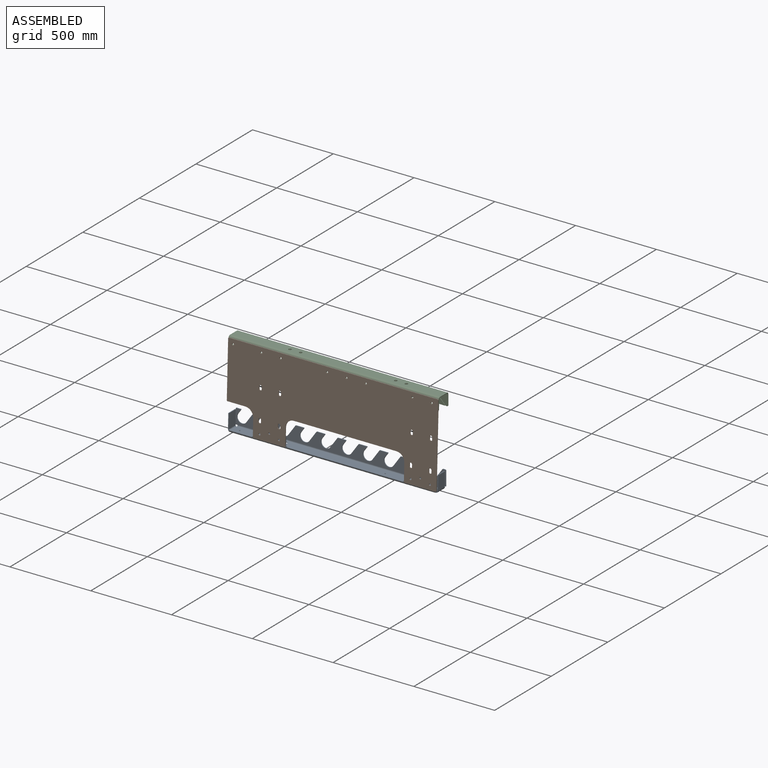
[diagram: assembled view]
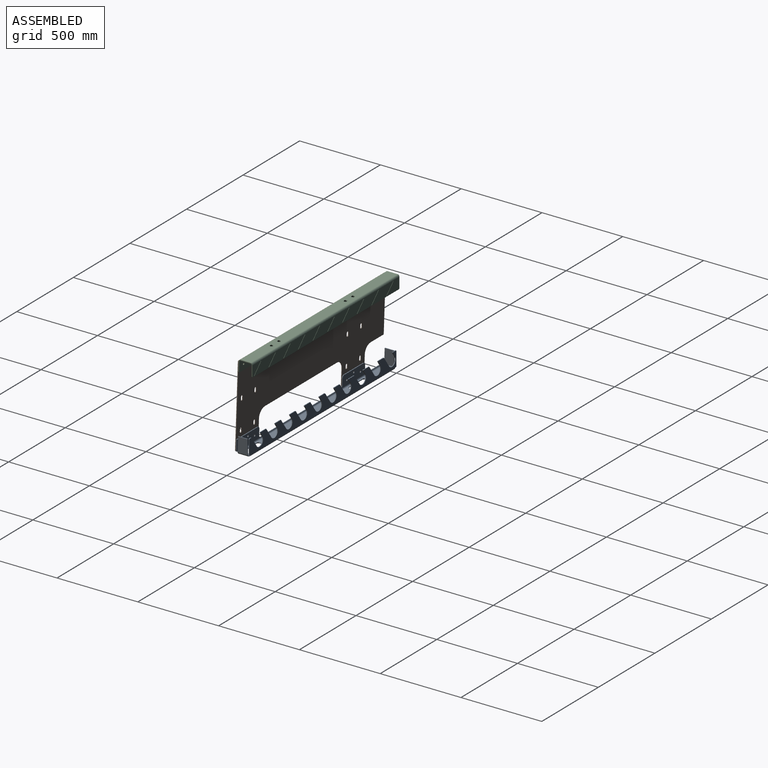
[diagram: assembled view, second angle]
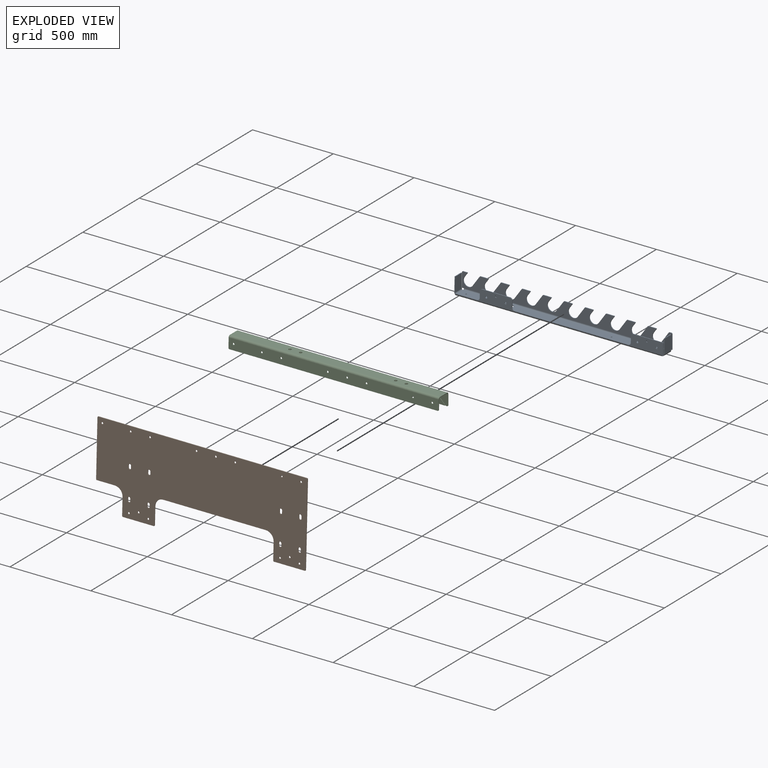
[diagram: exploded view]
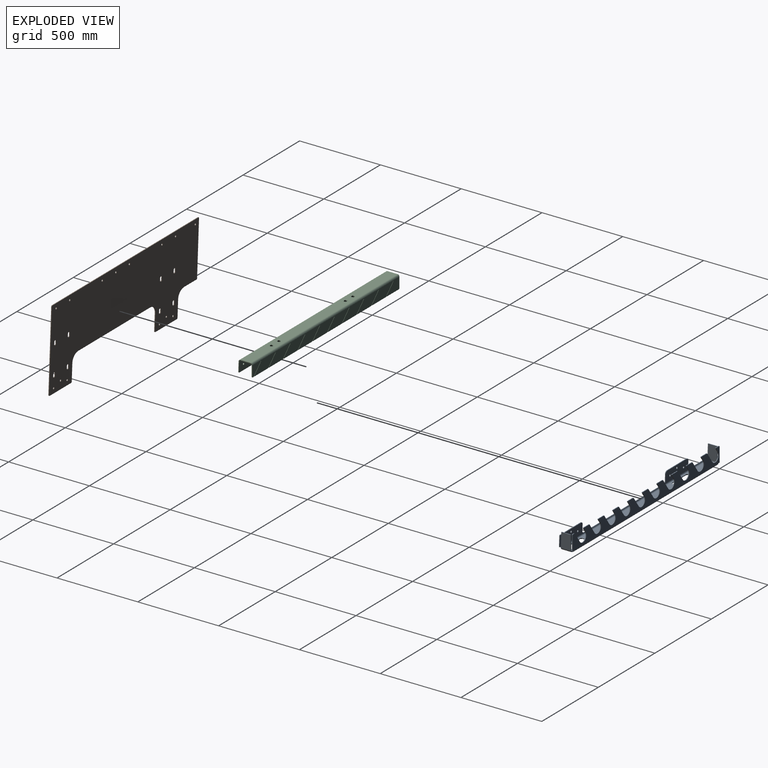
[diagram: exploded view, second angle]
ASSEMBLY  parts=3 mates=2
PART A: 143 faces, bbox 1300x84.2x104.5 mm
  f0: plane 7.1x4.5mm, normal (0,0,-1), area 32mm2, adj f5,f47,f48,f139
  f1: cylinder r=31mm len=56.39mm, axis (0,-1,0), area 438.3mm2, adj f2,f46,f47,f48
  f2: plane 63.4x44.39mm, normal (-0.82,0,0.57), area 348.3mm2, adj f1,f47,f48,f68
  f3: plane 11.71x4.5mm, normal (0,0,1), area 52.7mm2, adj f47,f48,f56,f68
  f4: plane 87.9x4.5mm, normal (1,0,0), area 395.6mm2, adj f5,f47,f48,f56
  f5: plane 4.5x4.5mm, normal (0,0,-1), area 20.2mm2, adj f0,f4,f47,f48
  f6: plane 7.1x4.5mm, normal (0,0,-1), area 31.9mm2, adj f7,f47,f48,f140
  f7: plane 4.5x4.5mm, normal (0,0,-1), area 20.2mm2, adj f6,f8,f47,f48
  f8: plane 87.9x4.5mm, normal (-1,0,0), area 395.6mm2, adj f7,f47,f48,f60
  f9: plane 26.16x4.5mm, normal (0,0,1), area 117.7mm2, adj f47,f48,f60,f61
  f10: plane 26.82x18.78mm, normal (0.82,0,-0.57), area 147.4mm2, adj f11,f47,f48,f61
  f11: cylinder r=31mm len=56.39mm, axis (0,-1,0), area 438.3mm2, adj f10,f12,f47,f48
  f12: plane 63.4x44.39mm, normal (-0.82,0,0.57), area 348.3mm2, adj f11,f47,f48,f58
  f13: plane 47.87x4.5mm, normal (0,0,1), area 215.4mm2, adj f47,f48,f58,f64
  f14: plane 26.82x18.78mm, normal (0.82,0,-0.57), area 147.4mm2, adj f15,f47,f48,f64
  f15: cylinder r=31mm len=56.39mm, axis (0,-1,0), area 438.3mm2, adj f14,f16,f47,f48
  f16: plane 63.4x44.39mm, normal (-0.82,0,0.57), area 348.3mm2, adj f15,f47,f48,f63
  f17: plane 47.87x4.5mm, normal (0,0,1), area 215.4mm2, adj f47,f48,f55,f63
  f18: plane 26.82x18.78mm, normal (0.82,0,-0.57), area 147.4mm2, adj f19,f47,f48,f55
  f19: cylinder r=31mm len=56.39mm, axis (0,-1,0), area 438.3mm2, adj f18,f20,f47,f48
  f20: plane 63.4x44.39mm, normal (-0.82,0,0.57), area 348.3mm2, adj f19,f47,f48,f54
  f21: plane 47.87x4.5mm, normal (0,0,1), area 215.4mm2, adj f47,f48,f53,f54
  f22: plane 26.82x18.78mm, normal (0.82,0,-0.57), area 147.4mm2, adj f23,f47,f48,f53
  f23: cylinder r=31mm len=56.39mm, axis (0,-1,0), area 438.3mm2, adj f22,f24,f47,f48
  f24: plane 63.4x44.39mm, normal (-0.82,0,0.57), area 348.3mm2, adj f23,f47,f48,f52
  f25: plane 47.87x4.5mm, normal (0,0,1), area 215.4mm2, adj f47,f48,f52,f59
  f26: plane 26.82x18.78mm, normal (0.82,0,-0.57), area 147.4mm2, adj f27,f47,f48,f59
  f27: cylinder r=31mm len=56.39mm, axis (0,-1,0), area 438.3mm2, adj f26,f28,f47,f48
  f28: plane 63.4x44.39mm, normal (-0.82,0,0.57), area 348.3mm2, adj f27,f47,f48,f51
  f29: plane 47.87x4.5mm, normal (0,0,1), area 215.4mm2, adj f47,f48,f51,f57
  f30: plane 26.82x18.78mm, normal (0.82,0,-0.57), area 147.4mm2, adj f31,f47,f48,f57
  f31: cylinder r=31mm len=56.39mm, axis (0,-1,0), area 438.3mm2, adj f30,f32,f47,f48
  f32: plane 63.4x44.39mm, normal (-0.82,0,0.57), area 348.3mm2, adj f31,f47,f48,f50
  f33: plane 47.87x4.5mm, normal (0,0,1), area 215.4mm2, adj f47,f48,f50,f62
  f34: plane 26.82x18.78mm, normal (0.82,0,-0.57), area 147.4mm2, adj f35,f47,f48,f62
  f35: cylinder r=31mm len=56.39mm, axis (0,-1,0), area 438.3mm2, adj f34,f36,f47,f48
  f36: plane 63.4x44.39mm, normal (-0.82,0,0.57), area 348.3mm2, adj f35,f47,f48,f49
  f37: plane 47.87x4.5mm, normal (0,0,1), area 215.4mm2, adj f47,f48,f49,f65
  f38: plane 26.82x18.78mm, normal (0.82,0,-0.57), area 147.4mm2, adj f39,f47,f48,f65
  f39: cylinder r=31mm len=56.39mm, axis (0,-1,0), area 438.3mm2, adj f38,f40,f47,f48
  f40: plane 63.4x44.39mm, normal (-0.82,0,0.57), area 348.3mm2, adj f39,f47,f48,f66
  f41: plane 47.87x4.5mm, normal (0,0,1), area 215.4mm2, adj f47,f48,f66,f67
  f42: plane 26.82x18.78mm, normal (0.82,0,-0.57), area 147.4mm2, adj f43,f47,f48,f67
  f43: cylinder r=31mm len=56.39mm, axis (0,-1,0), area 438.3mm2, adj f42,f44,f47,f48
  f44: plane 63.4x44.39mm, normal (-0.82,0,0.57), area 348.3mm2, adj f43,f47,f48,f69
  f45: plane 47.87x4.5mm, normal (0,0,1), area 215.4mm2, adj f47,f48,f69,f70
  f46: plane 26.82x18.78mm, normal (0.82,0,-0.57), area 147.4mm2, adj f1,f47,f48,f70
  f47: plane 1300x92.9mm, normal (0,1,0), area 69478.5mm2, adj f0,f1,f2,f3,f4,f5,f6,f7
  f48: plane 1300x92.9mm, normal (0,-1,0), area 69478.5mm2, adj f0,f1,f2,f3,f4,f5,f6,f7
  f49: cylinder r=5mm len=4.5mm, axis (0,1,0), area 21.6mm2, adj f36,f37,f47,f48
  f50: cylinder r=5mm len=4.5mm, axis (0,1,0), area 21.6mm2, adj f32,f33,f47,f48
  f51: cylinder r=5mm len=4.5mm, axis (0,1,0), area 21.6mm2, adj f28,f29,f47,f48
  f52: cylinder r=5mm len=4.5mm, axis (0,1,0), area 21.6mm2, adj f24,f25,f47,f48
  f53: cylinder r=2mm len=4.5mm, axis (0,1,0), area 19.6mm2, adj f21,f22,f47,f48
  f54: cylinder r=5mm len=4.5mm, axis (0,1,0), area 21.6mm2, adj f20,f21,f47,f48
  f55: cylinder r=2mm len=4.5mm, axis (0,1,0), area 19.6mm2, adj f17,f18,f47,f48
  f56: cylinder r=5mm len=5mm, axis (0,-1,0), area 35.3mm2, adj f3,f4,f47,f48
  f57: cylinder r=2mm len=4.5mm, axis (0,1,0), area 19.6mm2, adj f29,f30,f47,f48
  f58: cylinder r=5mm len=4.5mm, axis (0,1,0), area 21.6mm2, adj f12,f13,f47,f48
  f59: cylinder r=2mm len=4.5mm, axis (0,1,0), area 19.6mm2, adj f25,f26,f47,f48
  f60: cylinder r=5mm len=5mm, axis (0,1,0), area 35.3mm2, adj f8,f9,f47,f48
  f61: cylinder r=2mm len=4.5mm, axis (0,1,0), area 19.6mm2, adj f9,f10,f47,f48
  f62: cylinder r=2mm len=4.5mm, axis (0,1,0), area 19.6mm2, adj f33,f34,f47,f48
  f63: cylinder r=5mm len=4.5mm, axis (0,1,0), area 21.6mm2, adj f16,f17,f47,f48
  f64: cylinder r=2mm len=4.5mm, axis (0,1,0), area 19.6mm2, adj f13,f14,f47,f48
  f65: cylinder r=2mm len=4.5mm, axis (0,1,0), area 19.6mm2, adj f37,f38,f47,f48
  f66: cylinder r=5mm len=4.5mm, axis (0,1,0), area 21.6mm2, adj f40,f41,f47,f48
  f67: cylinder r=2mm len=4.5mm, axis (0,1,0), area 19.6mm2, adj f41,f42,f47,f48
  f68: cylinder r=5mm len=4.5mm, axis (0,1,0), area 21.6mm2, adj f2,f3,f47,f48
  f69: cylinder r=5mm len=4.5mm, axis (0,1,0), area 21.6mm2, adj f44,f45,f47,f48
  f70: cylinder r=2mm len=4.5mm, axis (0,1,0), area 19.6mm2, adj f45,f46,f47,f48
  f71: plane 30x4.5mm, normal (-1,0,0), area 135mm2, adj f81,f82,f84,f88
  f72: plane 120x4.5mm, normal (0,-1,0), area 540mm2, adj f81,f82,f87,f88
  f73: plane 30x4.5mm, normal (1,0,0), area 135mm2, adj f81,f82,f85,f87
  f74: plane 30x4.5mm, normal (-1,0,0), area 135mm2, adj f81,f82,f83,f90
  f75: plane 120x4.5mm, normal (0,-1,0), area 540mm2, adj f81,f82,f89,f90
  f76: plane 30x4.5mm, normal (1,0,0), area 135mm2, adj f81,f82,f86,f89
  f77: cylinder r=4mm len=8mm, axis (0,0,-1), area 113.1mm2, adj f81,f82
  f78: cylinder r=4mm len=8mm, axis (0,0,-1), area 113.1mm2, adj f81,f82
  f79: plane 120x4.5mm, normal (0,1,0), area 540mm2, adj f81,f82,f83,f86
  f80: plane 120x4.5mm, normal (0,1,0), area 540mm2, adj f81,f82,f84,f85
  f81: plane 1276.8x61.05mm, normal (0,0,-1), area 64016.9mm2, adj f71,f72,f73,f74,f75,f76,f77,f78
  f82: plane 1276.8x61.05mm, normal (0,0,1), area 64016.9mm2, adj f71,f72,f73,f74,f75,f76,f77,f78
  f83: cylinder r=10mm len=10mm, axis (0,0,1), area 70.7mm2, adj f74,f79,f81,f82
  f84: cylinder r=10mm len=10mm, axis (0,0,1), area 70.7mm2, adj f71,f80,f81,f82
  f85: cylinder r=10mm len=10mm, axis (0,0,-1), area 70.7mm2, adj f73,f80,f81,f82
  f86: cylinder r=10mm len=10mm, axis (0,0,-1), area 70.7mm2, adj f76,f79,f81,f82
  f87: cylinder r=10mm len=10mm, axis (0,0,1), area 70.7mm2, adj f72,f73,f81,f82
  f88: cylinder r=10mm len=10mm, axis (0,0,-1), area 70.7mm2, adj f71,f72,f81,f82
  f89: cylinder r=10mm len=10mm, axis (0,0,1), area 70.7mm2, adj f75,f76,f81,f82
  f90: cylinder r=10mm len=10mm, axis (0,0,-1), area 70.7mm2, adj f74,f75,f81,f82
  f91: plane 4.5x0.16mm, normal (0,-0.03,-1), area 0.4mm2, adj f101,f109,f110,f118
  f92: plane 4.5x4.5mm, normal (0,-0.03,-1), area 20.2mm2, adj f93,f108,f109,f110
  f93: plane 68.1x6.87mm, normal (1,0,0), area 305.9mm2, adj f92,f94,f109,f110
  f94: plane 185x4.5mm, normal (0,0.03,1), area 832.5mm2, adj f93,f109,f110,f113
  f95: plane 37.12x5.79mm, normal (-1,0,0), area 166.4mm2, adj f109,f110,f111,f113
  f96: plane 705x4.5mm, normal (0,0.03,1), area 3172.5mm2, adj f109,f110,f111,f115
  f97: plane 37.12x5.79mm, normal (1,0,0), area 166.4mm2, adj f109,f110,f115,f116
  f98: plane 170x4.5mm, normal (0,0.03,1), area 765mm2, adj f109,f110,f112,f116
  f99: plane 37.12x5.79mm, normal (-1,0,0), area 166.4mm2, adj f109,f110,f112,f114
  f100: plane 138.5x4.5mm, normal (0,0.03,1), area 623.3mm2, adj f101,f109,f110,f114
  f101: plane 4.53x1.16mm, normal (-1,0,0), area 4.5mm2, adj f91,f100,f109,f110
  f102: cylinder r=6mm len=12.15mm, axis (0,-1,0.03), area 169.6mm2, adj f109,f110
  f103: cylinder r=6mm len=12.15mm, axis (0,-1,0.03), area 169.6mm2, adj f109,f110
  f104: cylinder r=6mm len=12.15mm, axis (0,-1,0.03), area 169.6mm2, adj f109,f110
  f105: cylinder r=6mm len=12.15mm, axis (0,-1,0.03), area 169.6mm2, adj f109,f110
  f106: cylinder r=6mm len=12.15mm, axis (0,-1,0.03), area 169.6mm2, adj f109,f110
  f107: cylinder r=6mm len=12.15mm, axis (0,-1,0.03), area 169.6mm2, adj f109,f110
  f108: plane 7.1x4.5mm, normal (0,-0.03,-1), area 31.9mm2, adj f92,f109,f110,f117
  f109: plane 1288.5x67.95mm, normal (0,-1,0.03), area 27405.1mm2, adj f91,f92,f93,f94,f95,f96,f97,f98
  f110: plane 1288.5x67.95mm, normal (0,1,-0.03), area 27405.1mm2, adj f91,f92,f93,f94,f95,f96,f97,f98
  f111: cylinder r=15mm len=15.15mm, axis (0,-1,0.03), area 106mm2, adj f95,f96,f109,f110
  f112: cylinder r=15mm len=15.15mm, axis (0,1,-0.03), area 106mm2, adj f98,f99,f109,f110
  f113: cylinder r=15mm len=15.15mm, axis (0,1,-0.03), area 106mm2, adj f94,f95,f109,f110
  f114: cylinder r=15mm len=15.15mm, axis (0,1,-0.03), area 106mm2, adj f99,f100,f109,f110
  f115: cylinder r=15mm len=15.15mm, axis (0,1,-0.03), area 106mm2, adj f96,f97,f109,f110
  f116: cylinder r=15mm len=15.15mm, axis (0,-1,0.03), area 106mm2, adj f97,f98,f109,f110
  f117: plane 12.01x11.6mm, normal (1,0,0), area 67.6mm2, adj f108,f119,f120,f135
  f118: plane 12.01x11.6mm, normal (-1,0,0), area 67.6mm2, adj f91,f119,f120,f127
  f119: cylinder r=11.6mm len=1276.8mm, axis (1,0,0), area 23781.9mm2, adj f81,f109,f117,f118
  f120: cylinder r=7.1mm len=1276.8mm, axis (1,0,0), area 14556.1mm2, adj f82,f110,f117,f118
  f121: plane 57.96x4.5mm, normal (0,0,1), area 260.8mm2, adj f122,f123,f124,f125
  f122: plane 88.4x4.5mm, normal (0,1,0), area 397.8mm2, adj f121,f124,f125,f126
  f123: plane 88.4x4.5mm, normal (0,-1,0.03), area 398mm2, adj f121,f124,f125,f127
  f124: plane 88.4x61.05mm, normal (-1,0,0), area 5260.2mm2, adj f121,f122,f123,f128
  f125: plane 88.4x61.05mm, normal (1,0,0), area 5260.2mm2, adj f121,f122,f123,f129
  f126: plane 11.6x11.6mm, normal (0,1,0), area 66.1mm2, adj f122,f128,f129,f140
  f127: plane 11.6x11.6mm, normal (0,-1,0), area 66.1mm2, adj f118,f123,f128,f129
  f128: cylinder r=11.6mm len=61.05mm, axis (0,1,0), area 1112.4mm2, adj f81,f124,f126,f127
  f129: cylinder r=7.1mm len=61.05mm, axis (0,1,0), area 680.8mm2, adj f82,f125,f126,f127
  f130: plane 57.96x4.5mm, normal (0,0,1), area 260.8mm2, adj f131,f132,f133,f134
  f131: plane 88.4x4.5mm, normal (0,-1,0.03), area 398mm2, adj f130,f133,f134,f135
  f132: plane 88.4x4.5mm, normal (0,1,0), area 397.8mm2, adj f130,f133,f134,f136
  f133: plane 88.4x61.05mm, normal (1,0,0), area 5260.2mm2, adj f130,f131,f132,f137
  f134: plane 88.4x61.05mm, normal (-1,0,0), area 5260.2mm2, adj f130,f131,f132,f138
  f135: plane 11.6x11.6mm, normal (0,-1,0), area 66.1mm2, adj f117,f131,f137,f138
  f136: plane 11.6x11.6mm, normal (0,1,0), area 66.1mm2, adj f132,f137,f138,f139
  f137: cylinder r=11.6mm len=61.05mm, axis (0,-1,0), area 1112.4mm2, adj f81,f133,f135,f136
  f138: cylinder r=7.1mm len=61.05mm, axis (0,-1,0), area 680.8mm2, adj f82,f134,f135,f136
  f139: plane 11.6x11.6mm, normal (1,0,0), area 66.1mm2, adj f0,f136,f141,f142
  f140: plane 11.6x11.6mm, normal (-1,0,0), area 66.1mm2, adj f6,f126,f141,f142
  f141: cylinder r=11.6mm len=1276.8mm, axis (1,0,0), area 23264.9mm2, adj f47,f81,f139,f140
  f142: cylinder r=7.1mm len=1276.8mm, axis (1,0,0), area 14239.7mm2, adj f48,f82,f139,f140
PART B: 68 faces, bbox 1300x4.5x511 mm
  f0: plane 14x4.5mm, normal (-1,0,0), area 63mm2, adj f40,f41,f45,f46
  f1: plane 14x4.5mm, normal (-1,0,0), area 63mm2, adj f40,f41,f54,f57
  f2: plane 14x4.5mm, normal (-1,0,0), area 63mm2, adj f40,f41,f66,f67
  f3: plane 14x4.5mm, normal (-1,0,0), area 63mm2, adj f40,f41,f42,f51
  f4: plane 1290x4.5mm, normal (0,0,1), area 5805mm2, adj f40,f41,f52,f60
  f5: plane 501x4.5mm, normal (1,0,0), area 2254.5mm2, adj f40,f41,f52,f59
  f6: plane 190x4.5mm, normal (0,0,-1), area 855mm2, adj f40,f41,f59,f65
  f7: plane 105x4.5mm, normal (-1,0,0), area 472.5mm2, adj f40,f41,f56,f65
  f8: plane 635x4.5mm, normal (0,0,-1), area 2857.5mm2, adj f40,f41,f44,f56
  f9: plane 105x4.5mm, normal (1,0,0), area 472.5mm2, adj f40,f41,f44,f62
  f10: plane 190x4.5mm, normal (0,0,-1), area 855mm2, adj f40,f41,f61,f62
  f11: plane 105x4.5mm, normal (-1,0,0), area 472.5mm2, adj f40,f41,f48,f61
  f12: plane 110x4.5mm, normal (0,0,-1), area 495mm2, adj f40,f41,f48,f58
  f13: plane 14x4.5mm, normal (-1,0,0), area 63mm2, adj f40,f41,f63,f64
  f14: plane 14x4.5mm, normal (-1,0,0), area 63mm2, adj f40,f41,f43,f55
  f15: plane 14x4.5mm, normal (-1,0,0), area 63mm2, adj f40,f41,f50,f53
  f16: plane 14x4.5mm, normal (-1,0,0), area 63mm2, adj f40,f41,f47,f49
  f17: cylinder r=6mm len=12mm, axis (0,-1,0), area 169.6mm2, adj f40,f41
  f18: cylinder r=6mm len=12mm, axis (0,-1,0), area 169.6mm2, adj f40,f41
  f19: cylinder r=6mm len=12mm, axis (0,-1,0), area 169.6mm2, adj f40,f41
  f20: cylinder r=6mm len=12mm, axis (0,-1,0), area 169.6mm2, adj f40,f41
  f21: cylinder r=6mm len=12mm, axis (0,-1,0), area 169.6mm2, adj f40,f41
  f22: cylinder r=6mm len=12mm, axis (0,-1,0), area 169.6mm2, adj f40,f41
  f23: cylinder r=6mm len=12mm, axis (0,-1,0), area 169.6mm2, adj f40,f41
  f24: cylinder r=6mm len=12mm, axis (0,-1,0), area 169.6mm2, adj f40,f41
  f25: cylinder r=6mm len=12mm, axis (0,-1,0), area 169.6mm2, adj f40,f41
  f26: cylinder r=6mm len=12mm, axis (0,-1,0), area 169.6mm2, adj f40,f41
  f27: cylinder r=6mm len=12mm, axis (0,-1,0), area 169.6mm2, adj f40,f41
  f28: cylinder r=6mm len=12mm, axis (0,-1,0), area 169.6mm2, adj f40,f41
  f29: cylinder r=6mm len=12mm, axis (0,-1,0), area 169.6mm2, adj f40,f41
  f30: cylinder r=6mm len=12mm, axis (0,-1,0), area 169.6mm2, adj f40,f41
  f31: plane 14x4.5mm, normal (1,0,0), area 63mm2, adj f40,f41,f47,f49
  f32: plane 14x4.5mm, normal (1,0,0), area 63mm2, adj f40,f41,f50,f53
  f33: plane 14x4.5mm, normal (1,0,0), area 63mm2, adj f40,f41,f43,f55
  f34: plane 14x4.5mm, normal (1,0,0), area 63mm2, adj f40,f41,f63,f64
  f35: plane 341x4.5mm, normal (-1,0,0), area 1534.5mm2, adj f40,f41,f58,f60
  f36: plane 14x4.5mm, normal (1,0,0), area 63mm2, adj f40,f41,f42,f51
  f37: plane 14x4.5mm, normal (1,0,0), area 63mm2, adj f40,f41,f66,f67
  f38: plane 14x4.5mm, normal (1,0,0), area 63mm2, adj f40,f41,f54,f57
  f39: plane 14x4.5mm, normal (1,0,0), area 63mm2, adj f40,f41,f45,f46
  f40: plane 1300x511mm, normal (0,1,0), area 516888.1mm2, adj f0,f1,f2,f3,f4,f5,f6,f7
  f41: plane 1300x511mm, normal (0,-1,0), area 516888.1mm2, adj f0,f1,f2,f3,f4,f5,f6,f7
  f42: cylinder r=8mm len=16mm, axis (0,-1,0), area 113.1mm2, adj f3,f36,f40,f41
  f43: cylinder r=8mm len=16mm, axis (0,-1,0), area 113.1mm2, adj f14,f33,f40,f41
  f44: cylinder r=50mm len=50mm, axis (0,1,0), area 353.4mm2, adj f8,f9,f40,f41
  f45: cylinder r=8mm len=16mm, axis (0,1,0), area 113.1mm2, adj f0,f39,f40,f41
  f46: cylinder r=8mm len=16mm, axis (0,1,0), area 113.1mm2, adj f0,f39,f40,f41
  f47: cylinder r=8mm len=16mm, axis (0,1,0), area 113.1mm2, adj f16,f31,f40,f41
  f48: cylinder r=50mm len=50mm, axis (0,-1,0), area 353.4mm2, adj f11,f12,f40,f41
  f49: cylinder r=8mm len=16mm, axis (0,-1,0), area 113.1mm2, adj f16,f31,f40,f41
  f50: cylinder r=8mm len=16mm, axis (0,1,0), area 113.1mm2, adj f15,f32,f40,f41
  f51: cylinder r=8mm len=16mm, axis (0,1,0), area 113.1mm2, adj f3,f36,f40,f41
  f52: cylinder r=5mm len=5mm, axis (0,-1,0), area 35.3mm2, adj f4,f5,f40,f41
  f53: cylinder r=8mm len=16mm, axis (0,-1,0), area 113.1mm2, adj f15,f32,f40,f41
  f54: cylinder r=8mm len=16mm, axis (0,1,0), area 113.1mm2, adj f1,f38,f40,f41
  f55: cylinder r=8mm len=16mm, axis (0,1,0), area 113.1mm2, adj f14,f33,f40,f41
  f56: cylinder r=50mm len=50mm, axis (0,-1,0), area 353.4mm2, adj f7,f8,f40,f41
  f57: cylinder r=8mm len=16mm, axis (0,-1,0), area 113.1mm2, adj f1,f38,f40,f41
  f58: cylinder r=5mm len=5mm, axis (0,-1,0), area 35.3mm2, adj f12,f35,f40,f41
  f59: cylinder r=5mm len=5mm, axis (0,1,0), area 35.3mm2, adj f5,f6,f40,f41
  f60: cylinder r=5mm len=5mm, axis (0,1,0), area 35.3mm2, adj f4,f35,f40,f41
  f61: cylinder r=5mm len=5mm, axis (0,1,0), area 35.3mm2, adj f10,f11,f40,f41
  f62: cylinder r=5mm len=5mm, axis (0,-1,0), area 35.3mm2, adj f9,f10,f40,f41
  f63: cylinder r=8mm len=16mm, axis (0,1,0), area 113.1mm2, adj f13,f34,f40,f41
  f64: cylinder r=8mm len=16mm, axis (0,-1,0), area 113.1mm2, adj f13,f34,f40,f41
  f65: cylinder r=5mm len=5mm, axis (0,1,0), area 35.3mm2, adj f6,f7,f40,f41
  f66: cylinder r=8mm len=16mm, axis (0,1,0), area 113.1mm2, adj f2,f37,f40,f41
  f67: cylinder r=8mm len=16mm, axis (0,-1,0), area 113.1mm2, adj f2,f37,f40,f41
PART C: 98 faces, bbox 1300x87.2x79.7 mm
  f0: plane 58.14x4.5mm, normal (1,0,0), area 261.6mm2, adj f11,f12,f13,f95
  f1: plane 1290x4.5mm, normal (0,0,-1), area 5805mm2, adj f11,f12,f13,f14
  f2: plane 58.14x4.5mm, normal (-1,0,0), area 261.6mm2, adj f11,f12,f14,f94
  f3: cylinder r=6mm len=12mm, axis (0,-1,0), area 169.6mm2, adj f11,f12
  f4: cylinder r=6mm len=12mm, axis (0,-1,0), area 169.6mm2, adj f11,f12
  f5: cylinder r=6mm len=12mm, axis (0,-1,0), area 169.6mm2, adj f11,f12
  f6: cylinder r=6mm len=12mm, axis (0,-1,0), area 169.6mm2, adj f11,f12
  f7: cylinder r=6mm len=12mm, axis (0,-1,0), area 169.6mm2, adj f11,f12
  f8: cylinder r=6mm len=12mm, axis (0,-1,0), area 169.6mm2, adj f11,f12
  f9: cylinder r=6mm len=12mm, axis (0,-1,0), area 169.6mm2, adj f11,f12
  f10: cylinder r=6mm len=12mm, axis (0,-1,0), area 169.6mm2, adj f11,f12
  f11: plane 1300x63.14mm, normal (0,1,0), area 81171.2mm2, adj f0,f1,f2,f3,f4,f5,f6,f7
  f12: plane 1300x63.14mm, normal (0,-1,0), area 81171.2mm2, adj f0,f1,f2,f3,f4,f5,f6,f7
  f13: cylinder r=5mm len=5mm, axis (0,1,0), area 35.3mm2, adj f0,f1,f11,f12
  f14: cylinder r=5mm len=5mm, axis (0,-1,0), area 35.3mm2, adj f1,f2,f11,f12
  f15: plane 61.82x6.65mm, normal (1,0,0), area 277.6mm2, adj f21,f22,f90,f95
  f16: cylinder r=9mm len=18.15mm, axis (0,0.03,-1), area 254.5mm2, adj f21,f22
  f17: cylinder r=9mm len=18.15mm, axis (0,0.03,-1), area 254.5mm2, adj f21,f22
  f18: cylinder r=9mm len=18.15mm, axis (0,0.03,-1), area 254.5mm2, adj f21,f22
  f19: cylinder r=9mm len=18.15mm, axis (0,0.03,-1), area 254.5mm2, adj f21,f22
  f20: plane 61.82x6.65mm, normal (-1,0,0), area 277.6mm2, adj f21,f22,f91,f94
  f21: plane 1300x61.66mm, normal (0,0.03,-1), area 79189.5mm2, adj f15,f16,f17,f18,f19,f20,f93,f97
  f22: plane 1300x61.66mm, normal (0,-0.03,1), area 79189.5mm2, adj f15,f16,f17,f18,f19,f20,f92,f96
  f23: plane 63x62.88mm, normal (-0.71,0.02,-0.71), area 400.2mm2, adj f56,f57,f75,f76
  f24: plane 120.27x4.5mm, normal (0,0.03,-1), area 541.2mm2, adj f56,f57,f76,f82
  f25: plane 59.64x59.52mm, normal (0.71,-0.02,0.71), area 378.8mm2, adj f56,f57,f77,f82
  f26: plane 63x62.88mm, normal (-0.71,0.02,-0.71), area 400.2mm2, adj f56,f57,f77,f78
  f27: plane 4.5x3.88mm, normal (0,0.03,-1), area 17.4mm2, adj f56,f57,f78,f84
  f28: plane 63.52x6.71mm, normal (1,0,0), area 285.3mm2, adj f56,f57,f84,f90
  f29: plane 63.52x6.71mm, normal (-1,0,0), area 285.3mm2, adj f56,f57,f68,f91
  f30: plane 106.4x4.5mm, normal (0,0.03,-1), area 478.8mm2, adj f56,f57,f61,f68
  f31: plane 59.64x59.52mm, normal (0.71,-0.02,0.71), area 378.8mm2, adj f56,f57,f61,f80
  f32: plane 63x62.88mm, normal (-0.71,0.02,-0.71), area 400.2mm2, adj f56,f57,f80,f83
  f33: plane 120.27x4.5mm, normal (0,0.03,-1), area 541.2mm2, adj f56,f57,f79,f83
  f34: plane 59.64x59.52mm, normal (0.71,-0.02,0.71), area 378.8mm2, adj f56,f57,f79,f81
  f35: plane 63x62.88mm, normal (-0.71,0.02,-0.71), area 400.2mm2, adj f56,f57,f73,f81
  f36: plane 120.27x4.5mm, normal (0,0.03,-1), area 541.2mm2, adj f56,f57,f71,f73
  f37: plane 59.64x59.52mm, normal (0.71,-0.02,0.71), area 378.8mm2, adj f56,f57,f64,f71
  f38: plane 63x62.88mm, normal (-0.71,0.02,-0.71), area 400.2mm2, adj f56,f57,f62,f64
  f39: plane 120.27x4.5mm, normal (0,0.03,-1), area 541.2mm2, adj f56,f57,f62,f85
  f40: plane 59.64x59.52mm, normal (0.71,-0.02,0.71), area 378.8mm2, adj f56,f57,f69,f85
  f41: plane 63x62.88mm, normal (-0.71,0.02,-0.71), area 400.2mm2, adj f56,f57,f58,f69
  f42: plane 120.27x4.5mm, normal (0,0.03,-1), area 541.2mm2, adj f56,f57,f58,f87
  f43: plane 59.64x59.52mm, normal (0.71,-0.02,0.71), area 378.8mm2, adj f56,f57,f74,f87
  f44: plane 63x62.88mm, normal (-0.71,0.02,-0.71), area 400.2mm2, adj f56,f57,f74,f89
  f45: plane 120.27x4.5mm, normal (0,0.03,-1), area 541.2mm2, adj f56,f57,f88,f89
  f46: plane 59.64x59.52mm, normal (0.71,-0.02,0.71), area 378.8mm2, adj f56,f57,f67,f88
  f47: plane 63x62.88mm, normal (-0.71,0.02,-0.71), area 400.2mm2, adj f56,f57,f67,f86
  f48: plane 120.27x4.5mm, normal (0,0.03,-1), area 541.2mm2, adj f56,f57,f59,f86
  f49: plane 59.64x59.52mm, normal (0.71,-0.02,0.71), area 378.8mm2, adj f56,f57,f59,f60
  f50: plane 63x62.88mm, normal (-0.71,0.02,-0.71), area 400.2mm2, adj f56,f57,f60,f66
  f51: plane 120.27x4.5mm, normal (0,0.03,-1), area 541.2mm2, adj f56,f57,f63,f66
  f52: plane 59.64x59.52mm, normal (0.71,-0.02,0.71), area 378.8mm2, adj f56,f57,f63,f65
  f53: plane 63x62.88mm, normal (-0.71,0.02,-0.71), area 400.2mm2, adj f56,f57,f65,f72
  f54: plane 120.27x4.5mm, normal (0,0.03,-1), area 541.2mm2, adj f56,f57,f70,f72
  f55: plane 59.64x59.52mm, normal (0.71,-0.02,0.71), area 378.8mm2, adj f56,f57,f70,f75
  f56: plane 1300x68.36mm, normal (0,-1,-0.03), area 87038.7mm2, adj f23,f24,f25,f26,f27,f28,f29,f30
  f57: plane 1300x68.36mm, normal (0,1,0.03), area 87038.7mm2, adj f23,f24,f25,f26,f27,f28,f29,f30
  f58: cylinder r=5mm len=4.55mm, axis (0,-1,-0.03), area 17.7mm2, adj f41,f42,f56,f57
  f59: cylinder r=2mm len=4.62mm, axis (0,-1,-0.03), area 21.2mm2, adj f48,f49,f56,f57
  f60: cylinder r=1mm len=4.56mm, axis (0,-1,-0.03), area 14.1mm2, adj f49,f50,f56,f57
  f61: cylinder r=2mm len=4.62mm, axis (0,-1,-0.03), area 21.2mm2, adj f30,f31,f56,f57
  f62: cylinder r=5mm len=4.55mm, axis (0,-1,-0.03), area 17.7mm2, adj f38,f39,f56,f57
  f63: cylinder r=2mm len=4.62mm, axis (0,-1,-0.03), area 21.2mm2, adj f51,f52,f56,f57
  f64: cylinder r=1mm len=4.56mm, axis (0,-1,-0.03), area 14.1mm2, adj f37,f38,f56,f57
  f65: cylinder r=1mm len=4.56mm, axis (0,-1,-0.03), area 14.1mm2, adj f52,f53,f56,f57
  f66: cylinder r=5mm len=4.55mm, axis (0,-1,-0.03), area 17.7mm2, adj f50,f51,f56,f57
  f67: cylinder r=1mm len=4.56mm, axis (0,-1,-0.03), area 14.1mm2, adj f46,f47,f56,f57
  f68: cylinder r=5mm len=5.15mm, axis (0,-1,-0.03), area 35.3mm2, adj f29,f30,f56,f57
  f69: cylinder r=1mm len=4.56mm, axis (0,-1,-0.03), area 14.1mm2, adj f40,f41,f56,f57
  f70: cylinder r=2mm len=4.62mm, axis (0,-1,-0.03), area 21.2mm2, adj f54,f55,f56,f57
  f71: cylinder r=2mm len=4.62mm, axis (0,-1,-0.03), area 21.2mm2, adj f36,f37,f56,f57
  f72: cylinder r=5mm len=4.55mm, axis (0,-1,-0.03), area 17.7mm2, adj f53,f54,f56,f57
  f73: cylinder r=5mm len=4.55mm, axis (0,-1,-0.03), area 17.7mm2, adj f35,f36,f56,f57
  f74: cylinder r=1mm len=4.56mm, axis (0,-1,-0.03), area 14.1mm2, adj f43,f44,f56,f57
  f75: cylinder r=1mm len=4.56mm, axis (0,-1,-0.03), area 14.1mm2, adj f23,f55,f56,f57
  f76: cylinder r=5mm len=4.55mm, axis (0,-1,-0.03), area 17.7mm2, adj f23,f24,f56,f57
  f77: cylinder r=1mm len=4.56mm, axis (0,-1,-0.03), area 14.1mm2, adj f25,f26,f56,f57
  f78: cylinder r=5mm len=4.55mm, axis (0,-1,-0.03), area 17.7mm2, adj f26,f27,f56,f57
  f79: cylinder r=2mm len=4.62mm, axis (0,-1,-0.03), area 21.2mm2, adj f33,f34,f56,f57
  f80: cylinder r=1mm len=4.56mm, axis (0,-1,-0.03), area 14.1mm2, adj f31,f32,f56,f57
  f81: cylinder r=1mm len=4.56mm, axis (0,-1,-0.03), area 14.1mm2, adj f34,f35,f56,f57
  f82: cylinder r=2mm len=4.62mm, axis (0,-1,-0.03), area 21.2mm2, adj f24,f25,f56,f57
  f83: cylinder r=5mm len=4.55mm, axis (0,-1,-0.03), area 17.7mm2, adj f32,f33,f56,f57
  f84: cylinder r=5mm len=5.15mm, axis (0,-1,-0.03), area 35.3mm2, adj f27,f28,f56,f57
  f85: cylinder r=2mm len=4.62mm, axis (0,-1,-0.03), area 21.2mm2, adj f39,f40,f56,f57
  f86: cylinder r=5mm len=4.55mm, axis (0,-1,-0.03), area 17.7mm2, adj f47,f48,f56,f57
  f87: cylinder r=2mm len=4.62mm, axis (0,-1,-0.03), area 21.2mm2, adj f42,f43,f56,f57
  f88: cylinder r=2mm len=4.62mm, axis (0,-1,-0.03), area 21.2mm2, adj f45,f46,f56,f57
  f89: cylinder r=5mm len=4.55mm, axis (0,-1,-0.03), area 17.7mm2, adj f44,f45,f56,f57
  f90: plane 12x11.35mm, normal (1,0,0), area 66.1mm2, adj f15,f28,f92,f93
  f91: plane 12x11.35mm, normal (-1,0,0), area 66.1mm2, adj f20,f29,f92,f93
  f92: cylinder r=11.6mm len=1300mm, axis (1,0,0), area 23687.6mm2, adj f22,f57,f90,f91
  f93: cylinder r=7.1mm len=1300mm, axis (1,0,0), area 14498.4mm2, adj f21,f56,f90,f91
  f94: plane 11.59x11.35mm, normal (-1,0,0), area 64.6mm2, adj f2,f20,f96,f97
  f95: plane 11.59x11.35mm, normal (1,0,0), area 64.6mm2, adj f0,f15,f96,f97
  f96: cylinder r=11.6mm len=1300mm, axis (-1,0,0), area 23161.2mm2, adj f12,f22,f94,f95
  f97: cylinder r=7.1mm len=1300mm, axis (-1,0,0), area 14176.3mm2, adj f11,f21,f94,f95
PLACE A at identity fixed
PLACE B rot(axis=(-1,0,0),2deg) t=(0,-84.24,7.5)mm
PLACE C rot(axis=(-1,0,0),2deg) t=(0,-64.18,453.08)mm
MATE fastened B.f26 <-> C.f9  axis (0,1,-0.03) through (1260,-67.45,488.21)mm
MATE fastened B.f27 <-> A.f106  axis (0,1,-0.03) through (1260,-83.19,37.49)mm
